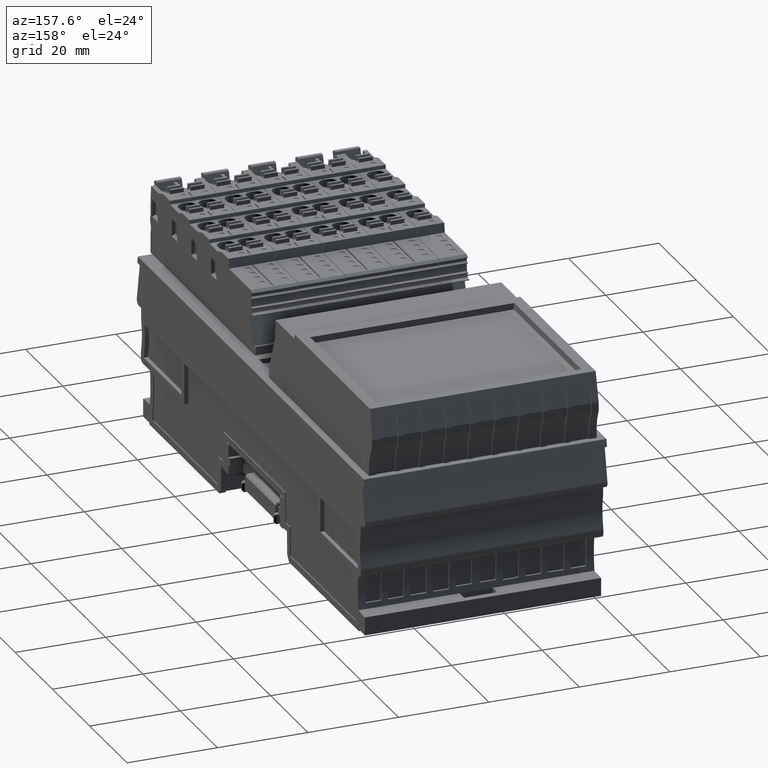
[diagram: clean part render]
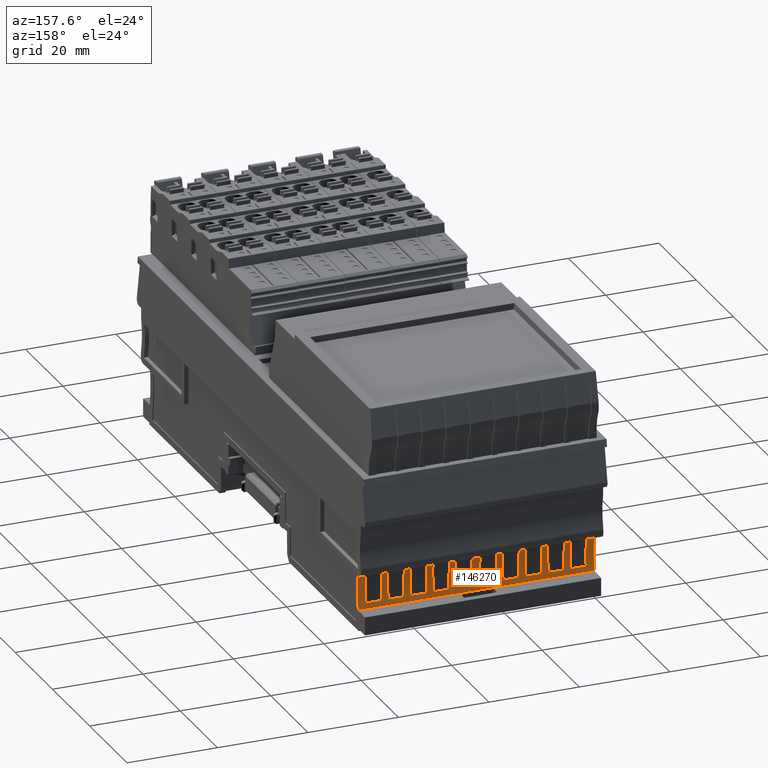
[diagram: same view with one face highlighted and labeled with its STEP entity id]
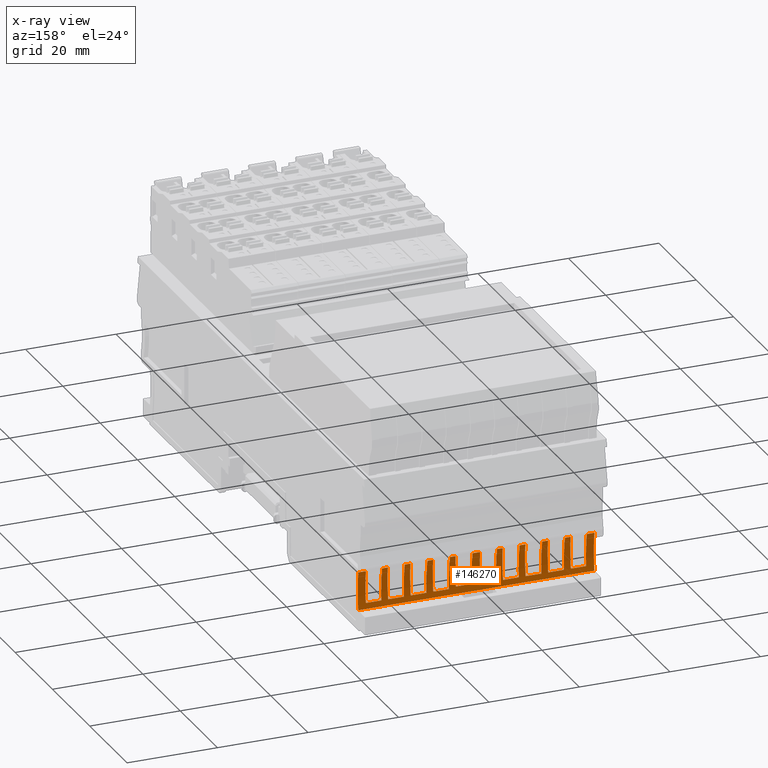
[diagram: x-ray of the same camera — body ghosted, the highlighted face saturated]
A machine part, auxiliary view. The second image highlights one B-rep face of the part: STEP entity #146270.
The next image is the same camera in x-ray: the body ghosted, the highlighted face saturated — about 0% of this face is hidden behind the body in this view.
In plain terms, the highlighted cylindrical surface (partial cylindrical patch) has radius 32 mm, axis along (1, -0, -0).
Its self-contained STEP definition (entity closure, byte-faithful):
#95190=CARTESIAN_POINT('',(110.903735656743,15.563936906881,
-34.0125851546365));
#95200=DIRECTION('',(-0.00212691339900759,0.0173223188362322,
-0.999847695156382));
#95210=DIRECTION('',(-0.121850787229782,0.992394981426756,
0.0174524064378229));
#95220=AXIS2_PLACEMENT_3D('',#95190,#95200,#95210);
#95230=ELLIPSE('',#95220,32.0048744974054,32.);
#95240=CARTESIAN_POINT('',(79.626375780575,8.80178050698401,
-34.0632048576358));
#95250=VERTEX_POINT('',#95240);
#95260=CARTESIAN_POINT('',(78.9062796824759,15.9674355746103,
-33.9375283727069));
#95270=VERTEX_POINT('',#95260);
#95280=EDGE_CURVE('',#95250,#95270,#95230,.T.);
#96650=CARTESIAN_POINT('',(79.5641304898053,9.09639116046415,
-27.5420316461985));
#96660=VERTEX_POINT('',#96650);
#96690=CARTESIAN_POINT('',(79.5641304899061,9.09639116048578,
-55.260002400555));
#96700=DIRECTION('',(-3.71422913355509E-12,-4.00157385418018E-13,1.));
#96710=VECTOR('',#96700,1.);
#96720=LINE('',#96690,#96710);
#96730=CARTESIAN_POINT('',(79.5641304897922,9.09639116046274,
-24.0125913893579));
#96740=VERTEX_POINT('',#96730);
#96750=EDGE_CURVE('',#96660,#96740,#96720,.T.);
#96990=CARTESIAN_POINT('',(110.903735656706,15.5639369068769,
-23.9899015279319));
#97000=DIRECTION('',(-0.00106349713636494,0.00866148922819657,
-0.999961923064169));
#97010=DIRECTION('',(0.121864701693652,-0.992508358684857,
-0.00872653549865132));
#97020=AXIS2_PLACEMENT_3D('',#96990,#97000,#97010);
#97030=ELLIPSE('',#97020,32.0012185083437,32.);
#97040=CARTESIAN_POINT('',(78.9062796824388,15.9674355746063,
-23.952375996911));
#97050=VERTEX_POINT('',#97040);
#97060=EDGE_CURVE('',#96740,#97050,#97030,.T.);
#97310=CARTESIAN_POINT('',(79.6263757806532,8.80178050699476,
-55.2600024005548));
#97320=DIRECTION('',(-3.71422913355509E-12,-4.00157385418018E-13,1.));
#97330=VECTOR('',#97320,1.);
#97340=LINE('',#97310,#97330);
#97350=CARTESIAN_POINT('',(79.6263757806073,8.8017805069837,
-42.5367951220103));
#97360=VERTEX_POINT('',#97350);
#97370=CARTESIAN_POINT('',(79.6263757805944,8.80178050698231,
-39.0632048576355));
#97380=VERTEX_POINT('',#97370);
#97390=EDGE_CURVE('',#97360,#97380,#97340,.T.);
#97780=CARTESIAN_POINT('',(110.903735656762,15.563936906883,
-39.0125851546362));
#97790=DIRECTION('',(-0.00212691339900759,0.0173223188362322,
-0.999847695156382));
#97800=DIRECTION('',(-0.121850787229782,0.992394981426756,
0.0174524064378229));
#97810=AXIS2_PLACEMENT_3D('',#97780,#97790,#97800);
#97820=ELLIPSE('',#97810,32.0048744974054,32.);
#97830=CARTESIAN_POINT('',(78.9062796824945,15.9674355746123,
-38.9375283727065));
#97840=VERTEX_POINT('',#97830);
#97850=EDGE_CURVE('',#97380,#97840,#97820,.T.);
#98470=CARTESIAN_POINT('',(78.9062796825326,15.9674355746164,
-49.1999999990493));
#98480=VERTEX_POINT('',#98470);
#98510=CARTESIAN_POINT('',(78.9062796825551,15.9674355746188,
-55.2600024005546));
#98520=DIRECTION('',(-3.71422913355509E-12,-4.00157385418018E-13,1.));
#98530=VECTOR('',#98520,1.);
#98540=LINE('',#98510,#98530);
#98550=CARTESIAN_POINT('',(78.9062796825263,15.9674355746157,
-47.5083678773095));
#98560=VERTEX_POINT('',#98550);
#98570=EDGE_CURVE('',#98480,#98560,#98540,.T.);
#98790=CARTESIAN_POINT('',(78.906279682513,15.9674355746143,
-43.9375283489985));
#98800=VERTEX_POINT('',#98790);
#98830=CARTESIAN_POINT('',(78.9062796825551,15.9674355746188,
-55.2600024005546));
#98840=DIRECTION('',(-3.71422913355509E-12,-4.00157385418018E-13,1.));
#98850=VECTOR('',#98840,1.);
#98860=LINE('',#98830,#98850);
#98870=CARTESIAN_POINT('',(78.9062796825083,15.9674355746138,
-42.6624716069432));
#98880=VERTEX_POINT('',#98870);
#98890=EDGE_CURVE('',#98800,#98880,#98860,.T.);
#99060=CARTESIAN_POINT('',(78.9062796825551,15.9674355746188,
-55.2600024005546));
#99070=DIRECTION('',(-3.71422913355509E-12,-4.00157385418018E-13,1.));
#99080=VECTOR('',#99070,1.);
#99090=LINE('',#99060,#99080);
#99100=CARTESIAN_POINT('',(78.9062796824897,15.9674355746118,
-37.6624716306536));
#99110=VERTEX_POINT('',#99100);
#99120=EDGE_CURVE('',#97840,#99110,#99090,.T.);
#99290=CARTESIAN_POINT('',(78.9062796825551,15.9674355746188,
-55.2600024005546));
#99300=DIRECTION('',(-3.71422913355509E-12,-4.00157385418018E-13,1.));
#99310=VECTOR('',#99300,1.);
#99320=LINE('',#99290,#99310);
#99330=CARTESIAN_POINT('',(78.9062796824712,15.9674355746098,
-32.6624716306533));
#99340=VERTEX_POINT('',#99330);
#99350=EDGE_CURVE('',#95270,#99340,#99320,.T.);
#99570=CARTESIAN_POINT('',(78.9062796824573,15.9674355746083,
-28.9375283493225));
#99580=VERTEX_POINT('',#99570);
#99610=CARTESIAN_POINT('',(78.9062796825551,15.9674355746188,
-55.2600024005546));
#99620=DIRECTION('',(-3.71422913355509E-12,-4.00157385418018E-13,1.));
#99630=VECTOR('',#99620,1.);
#99640=LINE('',#99610,#99630);
#99650=CARTESIAN_POINT('',(78.9062796824526,15.9674355746078,
-27.6624716035652));
#99660=VERTEX_POINT('',#99650);
#99670=EDGE_CURVE('',#99580,#99660,#99640,.T.);
#99770=CARTESIAN_POINT('',(78.9062796825551,15.9674355746188,
-55.2600024005546));
#99780=DIRECTION('',(-3.71422913355509E-12,-4.00157385418018E-13,1.));
#99790=VECTOR('',#99780,1.);
#99800=LINE('',#99770,#99790);
#99810=CARTESIAN_POINT('',(78.9062796824325,15.9674355746056,
-22.2476239827392));
#99820=VERTEX_POINT('',#99810);
#99830=EDGE_CURVE('',#97050,#99820,#99800,.T.);
#99960=CARTESIAN_POINT('',(78.9062796824187,15.9674355746041,
-18.5375283760858));
#99970=VERTEX_POINT('',#99960);
#100000=CARTESIAN_POINT('',(78.9062796825551,15.9674355746188,
-55.2600024005546));
#100010=DIRECTION('',(-3.71422913355509E-12,-4.00157385418018E-13,1.));
#100020=VECTOR('',#100010,1.);
#100030=LINE('',#100000,#100020);
#100040=CARTESIAN_POINT('',(78.906279682414,15.9674355746036,
-17.2624716303285));
#100050=VERTEX_POINT('',#100040);
#100060=EDGE_CURVE('',#99970,#100050,#100030,.T.);
#100280=CARTESIAN_POINT('',(78.9062796824001,15.9674355746021,
-13.5375283727072));
#100290=VERTEX_POINT('',#100280);
#100320=CARTESIAN_POINT('',(78.9062796825551,15.9674355746188,
-55.2600024005546));
#100330=DIRECTION('',(-3.71422913355509E-12,-4.00157385418018E-13,1.));
#100340=VECTOR('',#100330,1.);
#100350=LINE('',#100320,#100340);
#100360=CARTESIAN_POINT('',(78.9062796823954,15.9674355746016,
-12.262471630653));
#100370=VERTEX_POINT('',#100360);
#100380=EDGE_CURVE('',#100290,#100370,#100350,.T.);
#100600=CARTESIAN_POINT('',(78.9062796823816,15.9674355746001,
-8.53752837270756));
#100610=VERTEX_POINT('',#100600);
#100640=CARTESIAN_POINT('',(78.9062796825551,15.9674355746188,
-55.2600024005546));
#100650=DIRECTION('',(-3.71422913355509E-12,-4.00157385418018E-13,1.));
#100660=VECTOR('',#100650,1.);
#100670=LINE('',#100640,#100660);
#100680=CARTESIAN_POINT('',(78.9062796823768,15.9674355745996,
-7.26247163065266));
#100690=VERTEX_POINT('',#100680);
#100700=EDGE_CURVE('',#100610,#100690,#100670,.T.);
#100920=CARTESIAN_POINT('',(78.906279682363,15.9674355745981,
-3.53752837270753));
#100930=VERTEX_POINT('',#100920);
#100960=CARTESIAN_POINT('',(78.9062796825551,15.9674355746188,
-55.2600024005546));
#100970=DIRECTION('',(-3.71422913355509E-12,-4.00157385418018E-13,1.));
#100980=VECTOR('',#100970,1.);
#100990=LINE('',#100960,#100980);
#101000=CARTESIAN_POINT('',(78.9062796823582,15.9674355745976,
-2.26247163065268));
#101010=VERTEX_POINT('',#101000);
#101020=EDGE_CURVE('',#100930,#101010,#100990,.T.);
#101240=CARTESIAN_POINT('',(78.906279682345,15.9674355745962,
1.30836789901522));
#101250=VERTEX_POINT('',#101240);
#101280=CARTESIAN_POINT('',(78.9062796825551,15.9674355746188,
-55.2600024005546));
#101290=DIRECTION('',(-3.71422913355509E-12,-4.00157385418018E-13,1.));
#101300=VECTOR('',#101290,1.);
#101310=LINE('',#101280,#101300);
#101320=CARTESIAN_POINT('',(78.9062796823387,15.9674355745955,
3.0000000005265));
#101330=VERTEX_POINT('',#101320);
#101340=EDGE_CURVE('',#101250,#101330,#101310,.T.);
#103450=CARTESIAN_POINT('',(79.9221312282666,7.5551800099699,
-49.1999999990489));
#103460=VERTEX_POINT('',#103450);
#103490=CARTESIAN_POINT('',(110.903735656799,15.563936906887,
-49.1999999989305));
#103500=DIRECTION('',(-3.71422913355509E-12,-4.00157385418018E-13,1.));
#103510=DIRECTION('',(0.992546151641291,0.121869343405398,
3.73531075064378E-12));
#103520=AXIS2_PLACEMENT_3D('',#103490,#103500,#103510);
#103530=CIRCLE('',#103520,32.);
#103540=EDGE_CURVE('',#98480,#103460,#103530,.T.);
#116060=CARTESIAN_POINT('',(79.9246703412718,7.54536395519617,
-26.7576003876963));
#116070=VERTEX_POINT('',#116060);
#125030=CARTESIAN_POINT('',(79.9246703413777,7.54536395520762,
-55.2600024005542));
#125040=DIRECTION('',(-3.71422913355509E-12,-4.00157385418018E-13,1.));
#125050=VECTOR('',#125040,1.);
#125060=LINE('',#125030,#125050);
#125070=CARTESIAN_POINT('',(79.9246703412447,7.54536395519325,
-19.45985202437));
#125080=VERTEX_POINT('',#125070);
#125090=EDGE_CURVE('',#116070,#125080,#125060,.T.);
#133670=CARTESIAN_POINT('',(110.903735656605,15.5639369068662,
3.00000000064519));
#133680=DIRECTION('',(-3.71422913355509E-12,-4.00157385418018E-13,1.));
#133690=DIRECTION('',(0.992546151641291,0.121869343405398,
3.73531075064378E-12));
#133700=AXIS2_PLACEMENT_3D('',#133670,#133680,#133690);
#133710=CIRCLE('',#133700,32.);
#133720=CARTESIAN_POINT('',(79.9221312280727,7.55518000994902,
3.0000000005269));
#133730=VERTEX_POINT('',#133720);
#133740=EDGE_CURVE('',#101330,#133730,#133710,.T.);
#140190=CARTESIAN_POINT('',(110.903735656722,15.5639369068787,
-28.3080336572795));
#140200=DIRECTION('',(0.00106349717880068,-0.0086614892194875,
-0.999961923064199));
#140210=DIRECTION('',(-0.121864705754972,0.99250835818622,
-0.00872653549517878));
#140220=AXIS2_PLACEMENT_3D('',#140190,#140200,#140210);
#140230=ELLIPSE('',#140220,32.0012185083427,32.);
#140240=CARTESIAN_POINT('',(79.9246703412774,7.54536395519678,
-28.271525632554));
#140250=VERTEX_POINT('',#140240);
#140260=CARTESIAN_POINT('',(79.9221312281888,7.55518000996153,
-28.2716133578864));
#140270=VERTEX_POINT('',#140260);
#140280=EDGE_CURVE('',#140250,#140270,#140230,.T.);
#142680=CARTESIAN_POINT('',(110.903735656793,15.5639369068863,
-47.4708423460513));
#142690=DIRECTION('',(-0.00106349714379756,0.00866148922672503,
0.999961923064174));
#142700=DIRECTION('',(-0.121864701703184,0.992508358683691,
-0.00872653549809655));
#142710=AXIS2_PLACEMENT_3D('',#142680,#142690,#142700);
#142720=ELLIPSE('',#142710,32.0012185083435,32.);
#142730=CARTESIAN_POINT('',(79.626375780626,8.80178050698314,
-47.4455344204897));
#142740=VERTEX_POINT('',#142730);
#142750=EDGE_CURVE('',#98560,#142740,#142720,.T.);
#143070=CARTESIAN_POINT('',(79.6263757806551,8.80178050698619,
-55.2600024005548));
#143080=DIRECTION('',(-3.71422913355509E-12,-4.00157385418018E-13,1.));
#143090=VECTOR('',#143080,1.);
#143100=LINE('',#143070,#143090);
#143110=CARTESIAN_POINT('',(79.6263757806138,8.80178050698051,
-44.0632048339435));
#143120=VERTEX_POINT('',#143110);
#143130=EDGE_CURVE('',#142740,#143120,#143100,.T.);
#143450=CARTESIAN_POINT('',(110.90373565678,15.563936906885,
-44.0125851269903));
#143460=DIRECTION('',(0.00212691327577444,-0.017322318850844,
0.999847695156391));
#143470=DIRECTION('',(-0.121850780173348,0.992394982293186,
0.0174524064373075));
#143480=AXIS2_PLACEMENT_3D('',#143450,#143460,#143470);
#143490=ELLIPSE('',#143480,32.0048744974051,32.);
#143500=EDGE_CURVE('',#98800,#143120,#143490,.T.);
#143890=CARTESIAN_POINT('',(110.903735656822,15.5639369068895,
-55.260002400436));
#143900=DIRECTION('',(-3.71422913355509E-12,-4.00157385418018E-13,1.));
#143910=DIRECTION('',(0.992546151641291,0.121869343405398,
3.73531075064378E-12));
#143920=AXIS2_PLACEMENT_3D('',#143890,#143900,#143910);
#143930=CYLINDRICAL_SURFACE('',#143920,32.);
#143940=CARTESIAN_POINT('',(79.9221312282891,7.55518000997234,
-55.2600024005542));
#143950=DIRECTION('',(-3.71422913355509E-12,-4.00157385418018E-13,1.));
#143960=VECTOR('',#143950,1.);
#143970=LINE('',#143940,#143960);
#143980=CARTESIAN_POINT('',(79.9221312281504,7.55518000995739,
-17.9283865902764));
#143990=VERTEX_POINT('',#143980);
#144000=EDGE_CURVE('',#143990,#133730,#143970,.T.);
#144010=ORIENTED_EDGE('',*,*,#144000,.F.);
#144020=ORIENTED_EDGE('',*,*,#133740,.T.);
#144030=ORIENTED_EDGE('',*,*,#101340,.T.);
#144040=CARTESIAN_POINT('',(110.903735656612,15.5639369068668,
1.27084236726732));
#144050=DIRECTION('',(-0.00106349715910504,0.00866148922641938,
-0.99996192306416));
#144060=DIRECTION('',(-0.121864704285362,0.992508358366626,
0.0087265354996587));
#144070=AXIS2_PLACEMENT_3D('',#144040,#144050,#144060);
#144080=ELLIPSE('',#144070,32.001218508344,32.);
#144090=CARTESIAN_POINT('',(79.6263757804479,8.80178050695125,
1.24553444218646));
#144100=VERTEX_POINT('',#144090);
#144110=EDGE_CURVE('',#144100,#101250,#144080,.T.);
#144120=ORIENTED_EDGE('',*,*,#144110,.T.);
#144130=CARTESIAN_POINT('',(79.6263757806578,8.80178050697386,
-55.2600024005548));
#144140=DIRECTION('',(-3.71422913355509E-12,-4.00157385418018E-13,1.));
#144150=VECTOR('',#144140,1.);
#144160=LINE('',#144130,#144150);
#144170=CARTESIAN_POINT('',(79.6263757804604,8.80178050695259,
-2.13679514570349));
#144180=VERTEX_POINT('',#144170);
#144190=EDGE_CURVE('',#144180,#144100,#144160,.T.);
#144200=ORIENTED_EDGE('',*,*,#144190,.T.);
#144210=CARTESIAN_POINT('',(110.903735656625,15.5639369068682,
-2.18741485419954));
#144220=DIRECTION('',(-0.00212691322762619,0.0173223188562403,
0.9998476951564));
#144230=DIRECTION('',(-0.121850776993563,0.992394982683624,
-0.0174524064367958));
#144240=AXIS2_PLACEMENT_3D('',#144210,#144220,#144230);
#144250=ELLIPSE('',#144240,32.0048744974047,32.);
#144260=EDGE_CURVE('',#101010,#144180,#144250,.T.);
#144270=ORIENTED_EDGE('',*,*,#144260,.T.);
#144280=ORIENTED_EDGE('',*,*,#101020,.T.);
#144290=CARTESIAN_POINT('',(110.90373565663,15.5639369068688,
-3.6125851546372));
#144300=DIRECTION('',(-0.00212691339900759,0.0173223188362322,
-0.999847695156382));
#144310=DIRECTION('',(-0.121850787229782,0.992394981426756,
0.0174524064378229));
#144320=AXIS2_PLACEMENT_3D('',#144290,#144300,#144310);
#144330=ELLIPSE('',#144320,32.0048744974054,32.);
#144340=CARTESIAN_POINT('',(79.626375780464,8.80178050696276,
-3.66320485763658));
#144350=VERTEX_POINT('',#144340);
#144360=EDGE_CURVE('',#144350,#100930,#144330,.T.);
#144370=ORIENTED_EDGE('',*,*,#144360,.T.);
#144380=CARTESIAN_POINT('',(79.6263757806578,8.80178050697355,
-55.2600024005548));
#144390=DIRECTION('',(-3.71422913355509E-12,-4.00157385418018E-13,1.));
#144400=VECTOR('',#144390,1.);
#144410=LINE('',#144380,#144400);
#144420=CARTESIAN_POINT('',(79.6263757804769,8.80178050696416,
-7.13679514570364));
#144430=VERTEX_POINT('',#144420);
#144440=EDGE_CURVE('',#144430,#144350,#144410,.T.);
#144450=ORIENTED_EDGE('',*,*,#144440,.T.);
#144460=CARTESIAN_POINT('',(110.903735656643,15.5639369068702,
-7.18741485419952));
#144470=DIRECTION('',(-0.00212691322762619,0.0173223188562403,
0.9998476951564));
#144480=DIRECTION('',(-0.121850776993563,0.992394982683624,
-0.0174524064367958));
#144490=AXIS2_PLACEMENT_3D('',#144460,#144470,#144480);
#144500=ELLIPSE('',#144490,32.0048744974047,32.);
#144510=EDGE_CURVE('',#100690,#144430,#144500,.T.);
#144520=ORIENTED_EDGE('',*,*,#144510,.T.);
#144530=ORIENTED_EDGE('',*,*,#100700,.T.);
#144540=CARTESIAN_POINT('',(110.903735656649,15.5639369068708,
-8.61258515463721));
#144550=DIRECTION('',(-0.00212691339900759,0.0173223188362322,
-0.999847695156382));
#144560=DIRECTION('',(-0.121850787229782,0.992394981426756,
0.0174524064378229));
#144570=AXIS2_PLACEMENT_3D('',#144540,#144550,#144560);
#144580=ELLIPSE('',#144570,32.0048744974054,32.);
#144590=CARTESIAN_POINT('',(79.6263757804826,8.80178050696477,
-8.66320485763673));
#144600=VERTEX_POINT('',#144590);
#144610=EDGE_CURVE('',#144600,#100610,#144580,.T.);
#144620=ORIENTED_EDGE('',*,*,#144610,.T.);
#144630=CARTESIAN_POINT('',(79.6263757806572,8.80178050697633,
-55.2600024005548));
#144640=DIRECTION('',(-3.71422913355509E-12,-4.00157385418018E-13,1.));
#144650=VECTOR('',#144640,1.);
#144660=LINE('',#144630,#144650);
#144670=CARTESIAN_POINT('',(79.6263757804955,8.80178050696616,
-12.1367951457039));
#144680=VERTEX_POINT('',#144670);
#144690=EDGE_CURVE('',#144680,#144600,#144660,.T.);
#144700=ORIENTED_EDGE('',*,*,#144690,.T.);
#144710=CARTESIAN_POINT('',(110.903735656662,15.5639369068722,
-12.1874148541999));
#144720=DIRECTION('',(-0.00212691322762619,0.0173223188562403,
0.9998476951564));
#144730=DIRECTION('',(-0.121850776993563,0.992394982683624,
-0.0174524064367958));
#144740=AXIS2_PLACEMENT_3D('',#144710,#144720,#144730);
#144750=ELLIPSE('',#144740,32.0048744974047,32.);
#144760=EDGE_CURVE('',#100370,#144680,#144750,.T.);
#144770=ORIENTED_EDGE('',*,*,#144760,.T.);
#144780=ORIENTED_EDGE('',*,*,#100380,.T.);
#144790=CARTESIAN_POINT('',(110.903735656667,15.5639369068728,
-13.6125851546369));
#144800=DIRECTION('',(-0.00212691339900759,0.0173223188362322,
-0.999847695156382));
#144810=DIRECTION('',(-0.121850787229782,0.992394981426756,
0.0174524064378229));
#144820=AXIS2_PLACEMENT_3D('',#144790,#144800,#144810);
#144830=ELLIPSE('',#144820,32.0048744974054,32.);
#144840=CARTESIAN_POINT('',(79.6263757805012,8.80178050696677,
-13.6632048576363));
#144850=VERTEX_POINT('',#144840);
#144860=EDGE_CURVE('',#144850,#100290,#144830,.T.);
#144870=ORIENTED_EDGE('',*,*,#144860,.T.);
#144880=CARTESIAN_POINT('',(79.6263757806566,8.80178050697914,
-55.2600024005548));
#144890=DIRECTION('',(-3.71422913355509E-12,-4.00157385418018E-13,1.));
#144900=VECTOR('',#144890,1.);
#144910=LINE('',#144880,#144900);
#144920=CARTESIAN_POINT('',(79.6263757805141,8.80178050696816,
-17.1367951453773));
#144930=VERTEX_POINT('',#144920);
#144940=EDGE_CURVE('',#144930,#144850,#144910,.T.);
#144950=ORIENTED_EDGE('',*,*,#144940,.T.);
#144960=CARTESIAN_POINT('',(110.90373565668,15.5639369068742,
-17.187414853512));
#144970=DIRECTION('',(-0.00212691323899062,0.0173223188553922,
0.99984769515639));
#144980=DIRECTION('',(-0.121850777640879,0.992394982604134,
-0.017452406437339));
#144990=AXIS2_PLACEMENT_3D('',#144960,#144970,#144980);
#145000=ELLIPSE('',#144990,32.004874497405,32.);
#145010=EDGE_CURVE('',#100050,#144930,#145000,.T.);
#145020=ORIENTED_EDGE('',*,*,#145010,.T.);
#145030=ORIENTED_EDGE('',*,*,#100060,.T.);
#145040=CARTESIAN_POINT('',(110.903735656686,15.5639369068748,
-18.6125851580131));
#145050=DIRECTION('',(0.00212691339894258,-0.0173223188356557,
0.999847695156392));
#145060=DIRECTION('',(-0.121850787230081,0.99239498142673,
0.0174524064372428));
#145070=AXIS2_PLACEMENT_3D('',#145040,#145050,#145060);
#145080=ELLIPSE('',#145070,32.004874497405,32.);
#145090=CARTESIAN_POINT('',(79.5641304897723,9.09639116046059,
-18.6579683334471));
#145100=VERTEX_POINT('',#145090);
#145110=EDGE_CURVE('',#99970,#145100,#145080,.T.);
#145120=ORIENTED_EDGE('',*,*,#145110,.F.);
#145130=CARTESIAN_POINT('',(79.5641304899084,9.09639116047439,
-55.260002400555));
#145140=DIRECTION('',(-3.71422913355509E-12,-4.00157385418018E-13,1.));
#145150=VECTOR('',#145140,1.);
#145160=LINE('',#145130,#145150);
#145170=CARTESIAN_POINT('',(79.5641304897856,9.09639116046115,
-22.1874085902871));
#145180=VERTEX_POINT('',#145170);
#145190=EDGE_CURVE('',#145180,#145100,#145160,.T.);
#145200=ORIENTED_EDGE('',*,*,#145190,.T.);
#145210=CARTESIAN_POINT('',(110.903735656699,15.5639369068762,
-22.2100984532571));
#145220=DIRECTION('',(0.00106349708820595,-0.00866148923355081,
-0.999961923064174));
#145230=DIRECTION('',(0.121864695333001,-0.992508359465851,
0.00872653549809655));
#145240=AXIS2_PLACEMENT_3D('',#145210,#145220,#145230);
#145250=ELLIPSE('',#145240,32.0012185083435,32.);
#145260=EDGE_CURVE('',#145180,#99820,#145250,.T.);
#145270=ORIENTED_EDGE('',*,*,#145260,.F.);
#145280=ORIENTED_EDGE('',*,*,#99830,.T.);
#145290=ORIENTED_EDGE('',*,*,#97060,.T.);
#145300=ORIENTED_EDGE('',*,*,#96750,.T.);
#145310=CARTESIAN_POINT('',(110.903735656719,15.5639369068784,
-27.5874148231765));
#145320=DIRECTION('',(-0.00212691335079434,0.017322318841052,
0.999847695156401));
#145330=DIRECTION('',(-0.121850784050386,0.992394981817156,
-0.017452406436731));
#145340=AXIS2_PLACEMENT_3D('',#145310,#145320,#145330);
#145350=ELLIPSE('',#145340,32.0048744974047,32.);
#145360=EDGE_CURVE('',#99660,#96660,#145350,.T.);
#145370=ORIENTED_EDGE('',*,*,#145360,.T.);
#145380=ORIENTED_EDGE('',*,*,#99670,.T.);
#145390=CARTESIAN_POINT('',(110.903735656724,15.563936906879,
-29.0125851276777));
#145400=DIRECTION('',(0.00212691328713886,-0.0173223188499959,
0.999847695156382));
#145410=DIRECTION('',(-0.121850780820619,0.992394982213702,
0.0174524064378507));
#145420=AXIS2_PLACEMENT_3D('',#145390,#145400,#145410);
#145430=ELLIPSE('',#145420,32.0048744974054,32.);
#145440=CARTESIAN_POINT('',(79.6263757805572,8.80178050697831,
-29.0632048342696));
#145450=VERTEX_POINT('',#145440);
#145460=EDGE_CURVE('',#99580,#145450,#145430,.T.);
#145470=ORIENTED_EDGE('',*,*,#145460,.F.);
#145480=CARTESIAN_POINT('',(79.626375780654,8.8017805069914,
-55.2600024005548));
#145490=DIRECTION('',(-3.71422913355509E-12,-4.00157385418018E-13,1.));
#145500=VECTOR('',#145490,1.);
#145510=LINE('',#145480,#145500);
#145520=CARTESIAN_POINT('',(79.6263757805701,8.8017805069797,
-32.5367951457044));
#145530=VERTEX_POINT('',#145520);
#145540=EDGE_CURVE('',#145530,#145450,#145510,.T.);
#145550=ORIENTED_EDGE('',*,*,#145540,.T.);
#145560=CARTESIAN_POINT('',(110.903735656738,15.5639369068804,
-32.5874148542002));
#145570=DIRECTION('',(-0.00212691322762619,0.0173223188562403,
0.9998476951564));
#145580=DIRECTION('',(-0.121850776993563,0.992394982683624,
-0.0174524064367958));
#145590=AXIS2_PLACEMENT_3D('',#145560,#145570,#145580);
#145600=ELLIPSE('',#145590,32.0048744974047,32.);
#145610=EDGE_CURVE('',#99340,#145530,#145600,.T.);
#145620=ORIENTED_EDGE('',*,*,#145610,.T.);
#145630=ORIENTED_EDGE('',*,*,#99350,.T.);
#145640=ORIENTED_EDGE('',*,*,#95280,.T.);
#145650=CARTESIAN_POINT('',(79.6263757806536,8.80178050699308,
-55.2600024005548));
#145660=DIRECTION('',(-3.71422913355509E-12,-4.00157385418018E-13,1.));
#145670=VECTOR('',#145660,1.);
#145680=LINE('',#145650,#145670);
#145690=CARTESIAN_POINT('',(79.6263757805876,8.80178050698656,
-37.5367951457048));
#145700=VERTEX_POINT('',#145690);
#145710=EDGE_CURVE('',#145700,#95250,#145680,.T.);
#145720=ORIENTED_EDGE('',*,*,#145710,.T.);
#145730=CARTESIAN_POINT('',(110.903735656756,15.5639369068824,
-37.5874148542005));
#145740=DIRECTION('',(-0.00212691322762619,0.0173223188562403,
0.9998476951564));
#145750=DIRECTION('',(-0.121850776993563,0.992394982683624,
-0.0174524064367958));
#145760=AXIS2_PLACEMENT_3D('',#145730,#145740,#145750);
#145770=ELLIPSE('',#145760,32.0048744974047,32.);
#145780=EDGE_CURVE('',#99110,#145700,#145770,.T.);
#145790=ORIENTED_EDGE('',*,*,#145780,.T.);
#145800=ORIENTED_EDGE('',*,*,#99120,.T.);
#145810=ORIENTED_EDGE('',*,*,#97850,.T.);
#145820=ORIENTED_EDGE('',*,*,#97390,.T.);
#145830=CARTESIAN_POINT('',(110.903735656775,15.5639369068844,
-42.5874148265522));
#145840=DIRECTION('',(0.00212691335085935,-0.0173223188416285,
-0.999847695156391));
#145850=DIRECTION('',(-0.121850784050132,0.992394981817177,
-0.0174524064373112));
#145860=AXIS2_PLACEMENT_3D('',#145830,#145840,#145850);
#145870=ELLIPSE('',#145860,32.004874497405,32.);
#145880=EDGE_CURVE('',#97360,#98880,#145870,.T.);
#145890=ORIENTED_EDGE('',*,*,#145880,.F.);
#145900=ORIENTED_EDGE('',*,*,#98890,.T.);
#145910=ORIENTED_EDGE('',*,*,#143500,.F.);
#145920=ORIENTED_EDGE('',*,*,#143130,.T.);
#145930=ORIENTED_EDGE('',*,*,#142750,.T.);
#145940=ORIENTED_EDGE('',*,*,#98570,.T.);
#145950=ORIENTED_EDGE('',*,*,#103540,.F.);
#145960=CARTESIAN_POINT('',(79.9221312282891,7.55518000997234,
-55.2600024005542));
#145970=DIRECTION('',(-3.71422913355509E-12,-4.00157385418018E-13,1.));
#145980=VECTOR('',#145970,1.);
#145990=LINE('',#145960,#145980);
#146000=EDGE_CURVE('',#103460,#140270,#145990,.T.);
#146010=ORIENTED_EDGE('',*,*,#146000,.F.);
#146020=ORIENTED_EDGE('',*,*,#140280,.T.);
#146030=CARTESIAN_POINT('',(79.9246703413777,7.54536395520759,
-55.2600024005542));
#146040=DIRECTION('',(-3.71422913355509E-12,-4.00157385418018E-13,1.));
#146050=VECTOR('',#146040,1.);
#146060=LINE('',#146030,#146050);
#146070=EDGE_CURVE('',#140250,#116070,#146060,.T.);
#146080=ORIENTED_EDGE('',*,*,#146070,.F.);
#146090=ORIENTED_EDGE('',*,*,#125090,.F.);
#146100=CARTESIAN_POINT('',(79.9246703413777,7.54536395520759,
-55.2600024005542));
#146110=DIRECTION('',(-3.71422913355509E-12,-4.00157385418018E-13,1.));
#146120=VECTOR('',#146110,1.);
#146130=LINE('',#146100,#146120);
#146140=CARTESIAN_POINT('',(79.924670341239,7.54536395519264,
-17.9284743156088));
#146150=VERTEX_POINT('',#146140);
#146160=EDGE_CURVE('',#125080,#146150,#146130,.T.);
#146170=ORIENTED_EDGE('',*,*,#146160,.F.);
#146180=CARTESIAN_POINT('',(110.903735656683,15.5639369068745,
-17.8919662894378));
#146190=DIRECTION('',(0.0010634971351942,-0.00866148923128,
0.999961923064144));
#146200=DIRECTION('',(-0.121864701518746,0.992508358706307,
0.00872653550156909));
#146210=AXIS2_PLACEMENT_3D('',#146180,#146190,#146200);
#146220=ELLIPSE('',#146210,32.0012185083445,32.);
#146230=EDGE_CURVE('',#143990,#146150,#146220,.T.);
#146240=ORIENTED_EDGE('',*,*,#146230,.T.);
#146250=EDGE_LOOP('',(#146240,#146170,#146090,#146080,#146020,#146010,
#145950,#145940,#145930,#145920,#145910,#145900,#145890,#145820,#145810,
#145800,#145790,#145720,#145640,#145630,#145620,#145550,#145470,#145380,
#145370,#145300,#145290,#145280,#145270,#145200,#145120,#145030,#145020,
#144950,#144870,#144780,#144770,#144700,#144620,#144530,#144520,#144450,
#144370,#144280,#144270,#144200,#144120,#144030,#144020,#144010));
#146260=FACE_OUTER_BOUND('',#146250,.T.);
#146270=ADVANCED_FACE('',(#146260),#143930,.F.);